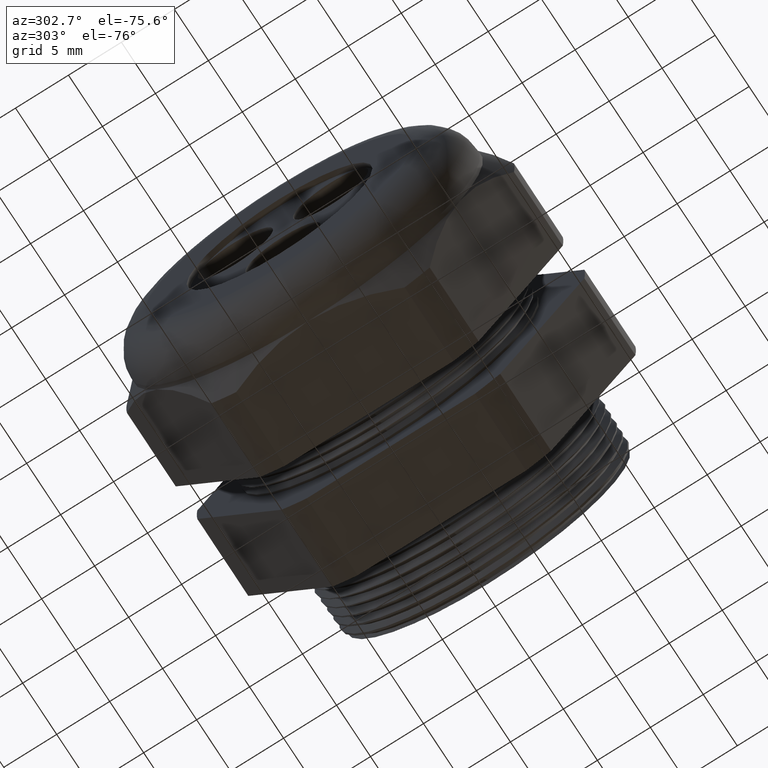
[diagram: clean part render]
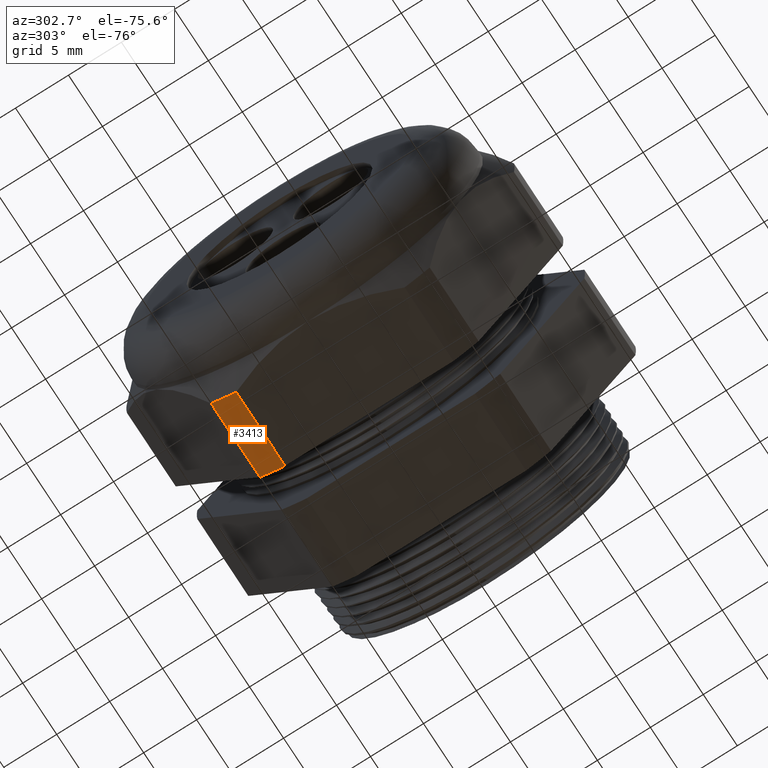
[diagram: same view with one face highlighted and labeled with its STEP entity id]
A machine part, auxiliary view. The second image highlights one B-rep face of the part: STEP entity #3413.
In plain terms, the highlighted cylindrical surface (partial cylindrical patch) has radius 18.3261 mm, axis along (-1, 0, 0).
Its self-contained STEP definition (entity closure, byte-faithful):
#51 = EDGE_CURVE ( 'NONE', #54, #53, #1061, .T. ) ;
#53 = VERTEX_POINT ( 'NONE', #1057 ) ;
#54 = VERTEX_POINT ( 'NONE', #1056 ) ;
#60 = ORIENTED_EDGE ( 'NONE', *, *, #3379, .T. ) ;
#62 = VERTEX_POINT ( 'NONE', #1045 ) ;
#63 = VERTEX_POINT ( 'NONE', #1044 ) ;
#64 = EDGE_CURVE ( 'NONE', #63, #62, #1107, .T. ) ;
#65 = ORIENTED_EDGE ( 'NONE', *, *, #64, .T. ) ;
#66 = EDGE_LOOP ( 'NONE', ( #65, #60, #3374, #3375 ) ) ;
#1044 = CARTESIAN_POINT ( 'NONE',  ( -0.7303149606299208500, 0.3131489262315934100, -0.6500000000000001300 ) ) ;
#1045 = CARTESIAN_POINT ( 'NONE',  ( -1.013145669291338300, 0.3131489262315934100, -0.6500000000000001300 ) ) ;
#1056 = CARTESIAN_POINT ( 'NONE',  ( -0.7303149606299208500, 0.4063420493440889600, -0.5961949252843789000 ) ) ;
#1057 = CARTESIAN_POINT ( 'NONE',  ( -1.013145669291338300, 0.4063420493440889600, -0.5961949252843789000 ) ) ;
#1058 = DIRECTION ( 'NONE',  ( -1.000000000000000000, 0.0000000000000000000, 0.0000000000000000000 ) ) ;
#1059 = VECTOR ( 'NONE', #1058, 39.37007874015748100 ) ;
#1060 = CARTESIAN_POINT ( 'NONE',  ( -0.03999999999999998000, 0.4063420493440889600, -0.5961949252843789000 ) ) ;
#1061 = LINE ( 'NONE', #1060, #1059 ) ;
#1104 = DIRECTION ( 'NONE',  ( -1.000000000000000000, 0.0000000000000000000, 0.0000000000000000000 ) ) ;
#1105 = VECTOR ( 'NONE', #1104, 39.37007874015748100 ) ;
#1106 = CARTESIAN_POINT ( 'NONE',  ( -0.03999999999999998000, 0.3131489262315934100, -0.6500000000000001300 ) ) ;
#1107 = LINE ( 'NONE', #1106, #1105 ) ;
#2799 = DIRECTION ( 'NONE',  ( 0.0000000000000000000, 0.0000000000000000000, -1.000000000000000000 ) ) ;
#2800 = DIRECTION ( 'NONE',  ( 1.000000000000000000, 0.0000000000000000000, 0.0000000000000000000 ) ) ;
#2801 = CARTESIAN_POINT ( 'NONE',  ( -1.013145669291338300, 0.0000000000000000000, 0.0000000000000000000 ) ) ;
#2802 = AXIS2_PLACEMENT_3D ( 'NONE', #2801, #2800, #2799 ) ;
#2803 = CIRCLE ( 'NONE', #2802, 0.7215000000000000300 ) ;
#2804 = DIRECTION ( 'NONE',  ( 0.0000000000000000000, 0.0000000000000000000, -1.000000000000000000 ) ) ;
#2805 = DIRECTION ( 'NONE',  ( 1.000000000000000000, 0.0000000000000000000, 0.0000000000000000000 ) ) ;
#2806 = CARTESIAN_POINT ( 'NONE',  ( -0.7303149606299208500, 0.0000000000000000000, 0.0000000000000000000 ) ) ;
#2807 = AXIS2_PLACEMENT_3D ( 'NONE', #2806, #2805, #2804 ) ;
#2808 = CIRCLE ( 'NONE', #2807, 0.7215000000000000300 ) ;
#2847 = CYLINDRICAL_SURFACE ( 'NONE', #2904, 0.7215000000000000300 ) ;
#2848 = FACE_OUTER_BOUND ( 'NONE', #66, .T. ) ;
#2901 = DIRECTION ( 'NONE',  ( 0.0000000000000000000, 0.0000000000000000000, 1.000000000000000000 ) ) ;
#2902 = DIRECTION ( 'NONE',  ( -1.000000000000000000, 0.0000000000000000000, 0.0000000000000000000 ) ) ;
#2903 = CARTESIAN_POINT ( 'NONE',  ( -0.03999999999999998000, 0.0000000000000000000, 0.0000000000000000000 ) ) ;
#2904 = AXIS2_PLACEMENT_3D ( 'NONE', #2903, #2902, #2901 ) ;
#3374 = ORIENTED_EDGE ( 'NONE', *, *, #51, .F. ) ;
#3375 = ORIENTED_EDGE ( 'NONE', *, *, #3378, .F. ) ;
#3378 = EDGE_CURVE ( 'NONE', #63, #54, #2808, .T. ) ;
#3379 = EDGE_CURVE ( 'NONE', #62, #53, #2803, .T. ) ;
#3413 = ADVANCED_FACE ( 'NONE', ( #2848 ), #2847, .T. ) ;